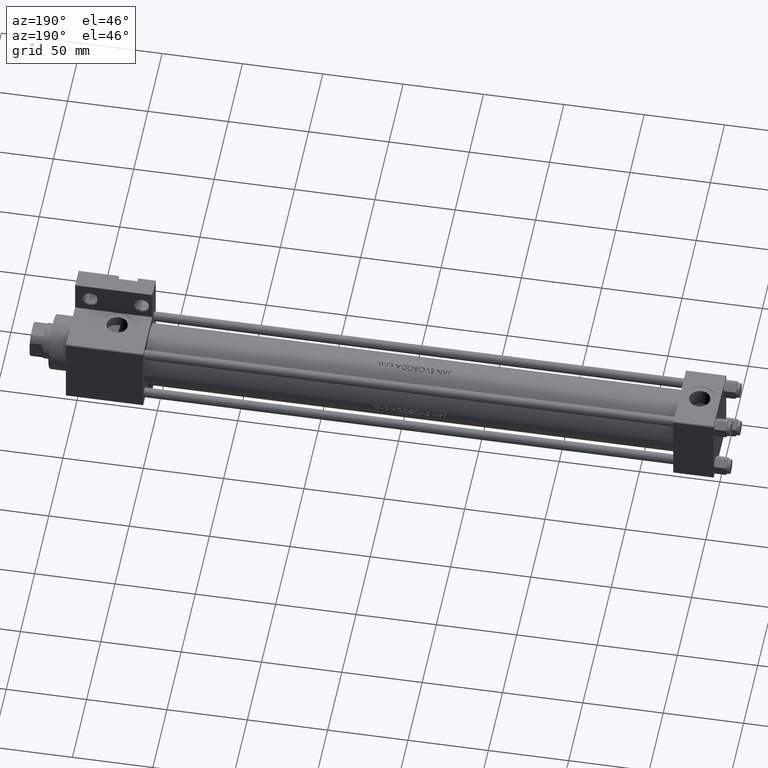
[diagram: clean part render]
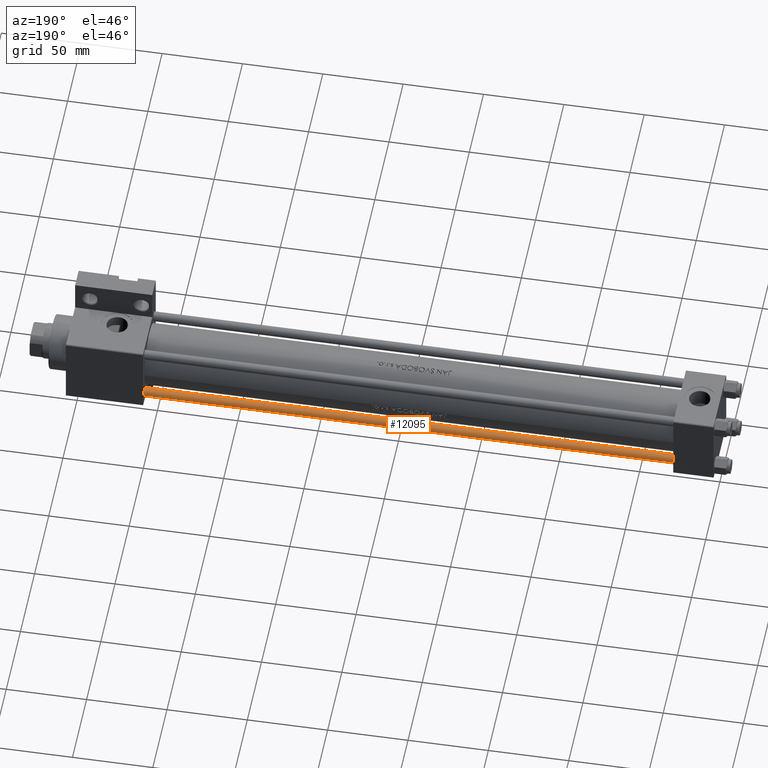
[diagram: same view with one face highlighted and labeled with its STEP entity id]
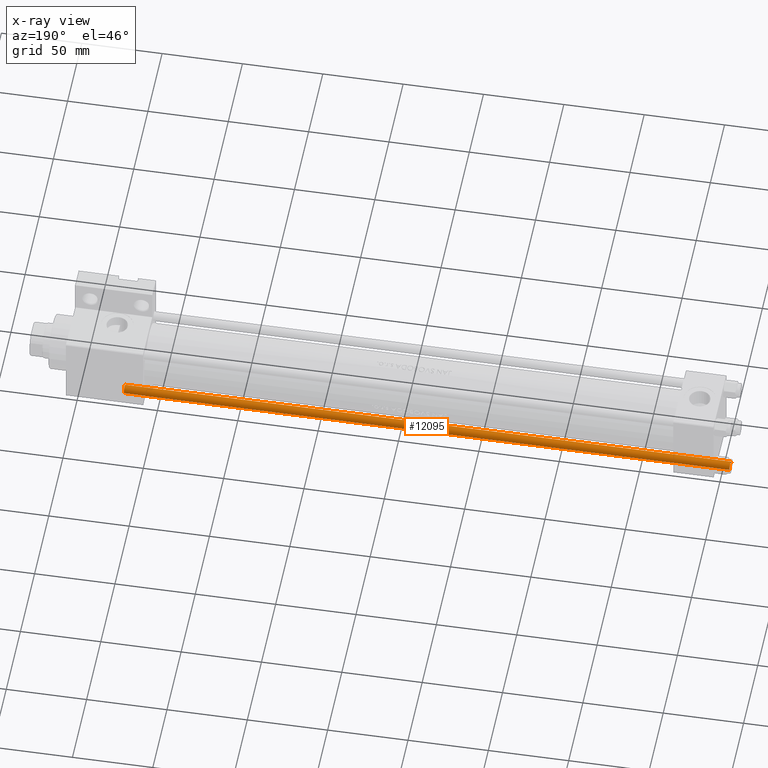
[diagram: x-ray of the same camera — body ghosted, the highlighted face saturated]
A machine part, auxiliary view. The second image highlights one B-rep face of the part: STEP entity #12095.
The next image is the same camera in x-ray: the body ghosted, the highlighted face saturated — about 0% of this face is hidden behind the body in this view.
In plain terms, the highlighted cylindrical surface (edge-blend (fillet) strip) has radius 3 mm, axis along (-1, -0, 0).
Its self-contained STEP definition (entity closure, byte-faithful):
#1045 = LINE ( 'NONE', #31203, #43115 ) ;
#1206 = CARTESIAN_POINT ( 'NONE',  ( 3.000000000000000444, 3.673940397442060361E-16, 378.0000000000000000 ) ) ;
#2967 = DIRECTION ( 'NONE',  ( -0.000000000000000000, -0.000000000000000000, 1.000000000000000000 ) ) ;
#3103 = DIRECTION ( 'NONE',  ( 1.000000000000000000, 0.000000000000000000, 0.000000000000000000 ) ) ;
#3206 = DIRECTION ( 'NONE',  ( 1.000000000000000000, 0.000000000000000000, 0.000000000000000000 ) ) ;
#3504 = AXIS2_PLACEMENT_3D ( 'NONE', #32177, #2967, #3206 ) ;
#4468 = ORIENTED_EDGE ( 'NONE', *, *, #5028, .F. ) ;
#4643 = CARTESIAN_POINT ( 'NONE',  ( 0.000000000000000000, 0.000000000000000000, 378.0000000000000000 ) ) ;
#5028 = EDGE_CURVE ( 'NONE', #35138, #30377, #1045, .T. ) ;
#12095 = ADVANCED_FACE ( 'NONE', ( #44737 ), #18648, .T. ) ;
#15485 = ORIENTED_EDGE ( 'NONE', *, *, #33133, .T. ) ;
#15752 = DIRECTION ( 'NONE',  ( -0.000000000000000000, -0.000000000000000000, -1.000000000000000000 ) ) ;
#15761 = DIRECTION ( 'NONE',  ( -0.000000000000000000, -0.000000000000000000, -1.000000000000000000 ) ) ;
#16851 = CARTESIAN_POINT ( 'NONE',  ( 0.000000000000000000, 0.000000000000000000, 377.5000000000000000 ) ) ;
#18648 = CYLINDRICAL_SURFACE ( 'NONE', #24673, 3.000000000000000444 ) ;
#20149 = CARTESIAN_POINT ( 'NONE',  ( -3.000000000000000444, 0.000000000000000000, 0.5000000000000004441 ) ) ;
#20284 = AXIS2_PLACEMENT_3D ( 'NONE', #16851, #31590, #3103 ) ;
#20949 = EDGE_CURVE ( 'NONE', #33168, #39122, #45843, .T. ) ;
#21506 = ORIENTED_EDGE ( 'NONE', *, *, #28032, .T. ) ;
#24507 = CARTESIAN_POINT ( 'NONE',  ( -3.000000000000000444, 0.000000000000000000, 377.5000000000000000 ) ) ;
#24673 = AXIS2_PLACEMENT_3D ( 'NONE', #4643, #15752, #44965 ) ;
#27645 = EDGE_LOOP ( 'NONE', ( #15485, #38043, #21506, #4468 ) ) ;
#28032 = EDGE_CURVE ( 'NONE', #39122, #30377, #36660, .T. ) ;
#30377 = VERTEX_POINT ( 'NONE', #20149 ) ;
#31203 = CARTESIAN_POINT ( 'NONE',  ( -3.000000000000000444, 0.000000000000000000, 378.0000000000000000 ) ) ;
#31590 = DIRECTION ( 'NONE',  ( 0.000000000000000000, 0.000000000000000000, -1.000000000000000000 ) ) ;
#32177 = CARTESIAN_POINT ( 'NONE',  ( 0.000000000000000000, 0.000000000000000000, 0.5000000000000004441 ) ) ;
#33133 = EDGE_CURVE ( 'NONE', #35138, #33168, #44992, .T. ) ;
#33168 = VERTEX_POINT ( 'NONE', #33499 ) ;
#33499 = CARTESIAN_POINT ( 'NONE',  ( 3.000000000000000444, 3.673940397442060361E-16, 377.5000000000000000 ) ) ;
#34269 = DIRECTION ( 'NONE',  ( -0.000000000000000000, -0.000000000000000000, -1.000000000000000000 ) ) ;
#35138 = VERTEX_POINT ( 'NONE', #24507 ) ;
#36660 = CIRCLE ( 'NONE', #3504, 3.000000000000000444 ) ;
#38043 = ORIENTED_EDGE ( 'NONE', *, *, #20949, .T. ) ;
#39122 = VERTEX_POINT ( 'NONE', #40290 ) ;
#40290 = CARTESIAN_POINT ( 'NONE',  ( 3.000000000000000444, 3.673940397442060361E-16, 0.5000000000000004441 ) ) ;
#41971 = VECTOR ( 'NONE', #34269, 1000.000000000000000 ) ;
#43115 = VECTOR ( 'NONE', #15761, 1000.000000000000000 ) ;
#44737 = FACE_OUTER_BOUND ( 'NONE', #27645, .T. ) ;
#44965 = DIRECTION ( 'NONE',  ( -1.000000000000000000, 0.000000000000000000, 0.000000000000000000 ) ) ;
#44992 = CIRCLE ( 'NONE', #20284, 3.000000000000000444 ) ;
#45843 = LINE ( 'NONE', #1206, #41971 ) ;